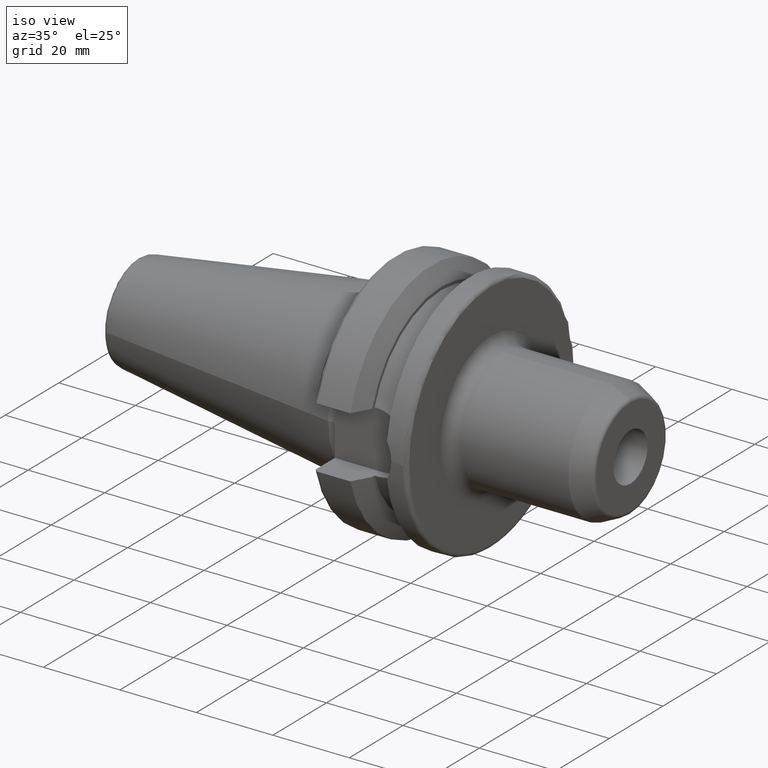
[diagram: clean part render]
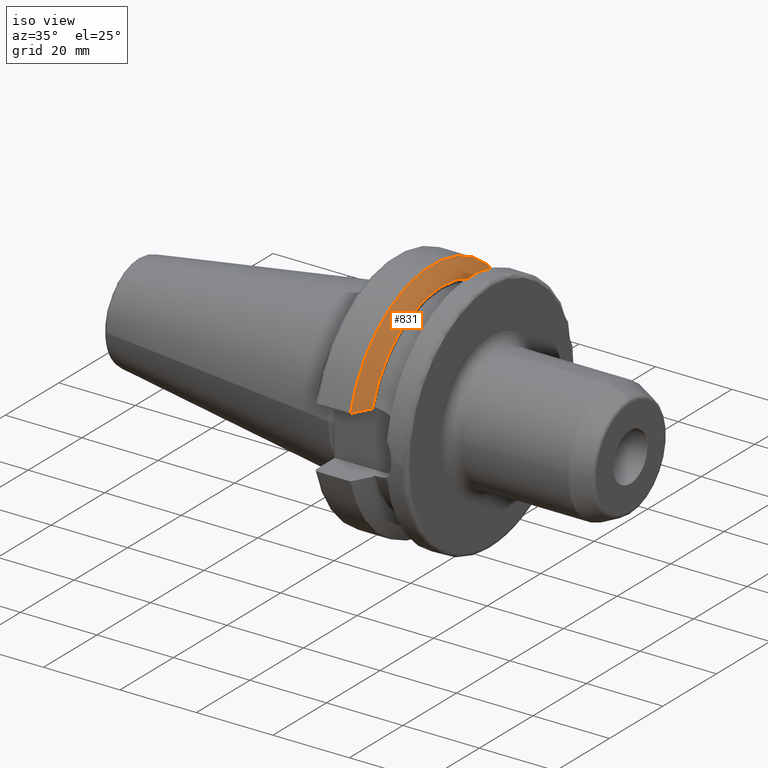
[diagram: same view with one face highlighted and labeled with its STEP entity id]
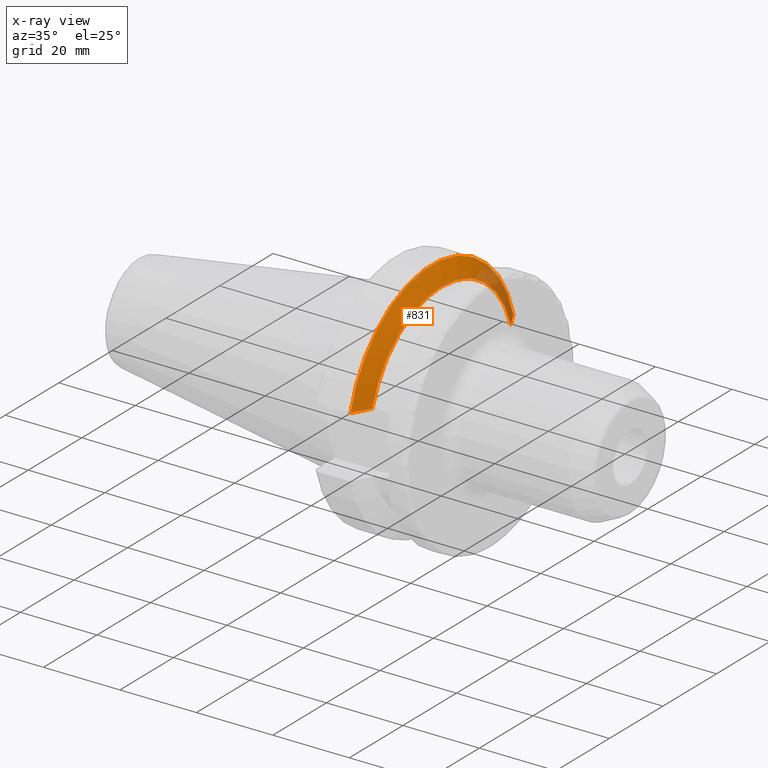
[diagram: x-ray of the same camera — body ghosted, the highlighted face saturated]
A machine part, iso view. The second image highlights one B-rep face of the part: STEP entity #831.
The next image is the same camera in x-ray: the body ghosted, the highlighted face saturated — about 12% of this face is hidden behind the body in this view.
In plain terms, the highlighted conical surface has half-angle 60.125 deg.
Its self-contained STEP definition (entity closure, byte-faithful):
#15=(
BOUNDED_CURVE()
B_SPLINE_CURVE(2,(#1534,#1535,#1536),.UNSPECIFIED.,.F.,.F.)
B_SPLINE_CURVE_WITH_KNOTS((3,3),(0.,0.52358279083281),.UNSPECIFIED.)
CURVE()
GEOMETRIC_REPRESENTATION_ITEM()
RATIONAL_B_SPLINE_CURVE((1.,1.00307360097546,1.))
REPRESENTATION_ITEM('')
);
#18=(
BOUNDED_CURVE()
B_SPLINE_CURVE(2,(#1694,#1695,#1696),.UNSPECIFIED.,.F.,.F.)
B_SPLINE_CURVE_WITH_KNOTS((3,3),(0.,0.52358279083281),.UNSPECIFIED.)
CURVE()
GEOMETRIC_REPRESENTATION_ITEM()
RATIONAL_B_SPLINE_CURVE((1.,1.00307360097546,1.))
REPRESENTATION_ITEM('')
);
#42=CONICAL_SURFACE('',#945,29.2970358274569,1.0493792127616);
#101=CIRCLE('',#944,31.5000000000001);
#102=CIRCLE('',#946,27.0940716549138);
#166=FACE_OUTER_BOUND('',#220,.T.);
#220=EDGE_LOOP('',(#747,#748,#749,#750));
#374=VERTEX_POINT('',#1531);
#375=VERTEX_POINT('',#1533);
#406=VERTEX_POINT('',#1691);
#407=VERTEX_POINT('',#1693);
#465=EDGE_CURVE('',#375,#374,#15,.T.);
#510=EDGE_CURVE('',#407,#406,#18,.T.);
#531=EDGE_CURVE('',#406,#375,#101,.T.);
#532=EDGE_CURVE('',#407,#374,#102,.T.);
#747=ORIENTED_EDGE('',*,*,#465,.T.);
#748=ORIENTED_EDGE('',*,*,#532,.F.);
#749=ORIENTED_EDGE('',*,*,#510,.T.);
#750=ORIENTED_EDGE('',*,*,#531,.T.);
#831=ADVANCED_FACE('',(#166),#42,.T.);
#944=AXIS2_PLACEMENT_3D('',#1737,#1170,#1171);
#945=AXIS2_PLACEMENT_3D('',#1738,#1172,#1173);
#946=AXIS2_PLACEMENT_3D('',#1739,#1174,#1175);
#1170=DIRECTION('center_axis',(1.,0.,0.));
#1171=DIRECTION('ref_axis',(0.,0.,-1.));
#1172=DIRECTION('center_axis',(-1.,0.,0.));
#1173=DIRECTION('ref_axis',(0.,1.,0.));
#1174=DIRECTION('center_axis',(1.,0.,0.));
#1175=DIRECTION('ref_axis',(0.,0.,-1.));
#1531=CARTESIAN_POINT('',(14.1,-25.8705666509569,8.05));
#1533=CARTESIAN_POINT('',(11.5690363073382,-30.4540227227866,8.05));
#1534=CARTESIAN_POINT('Ctrl Pts',(11.5690363073382,-30.4540227227866,8.05));
#1535=CARTESIAN_POINT('Ctrl Pts',(12.9374976962938,-27.989970265181,8.05));
#1536=CARTESIAN_POINT('Ctrl Pts',(14.1,-25.8705666509569,8.05));
#1691=CARTESIAN_POINT('',(11.5690363073382,30.4540227227866,8.05));
#1693=CARTESIAN_POINT('',(14.1,25.8705666509569,8.05));
#1694=CARTESIAN_POINT('Ctrl Pts',(14.1,25.8705666509569,8.05));
#1695=CARTESIAN_POINT('Ctrl Pts',(12.9374976962938,27.989970265181,8.05));
#1696=CARTESIAN_POINT('Ctrl Pts',(11.5690363073382,30.4540227227866,8.05));
#1737=CARTESIAN_POINT('Origin',(11.5690363073382,0.,0.));
#1738=CARTESIAN_POINT('Origin',(12.8345181536691,0.,0.));
#1739=CARTESIAN_POINT('Origin',(14.1,0.,0.));